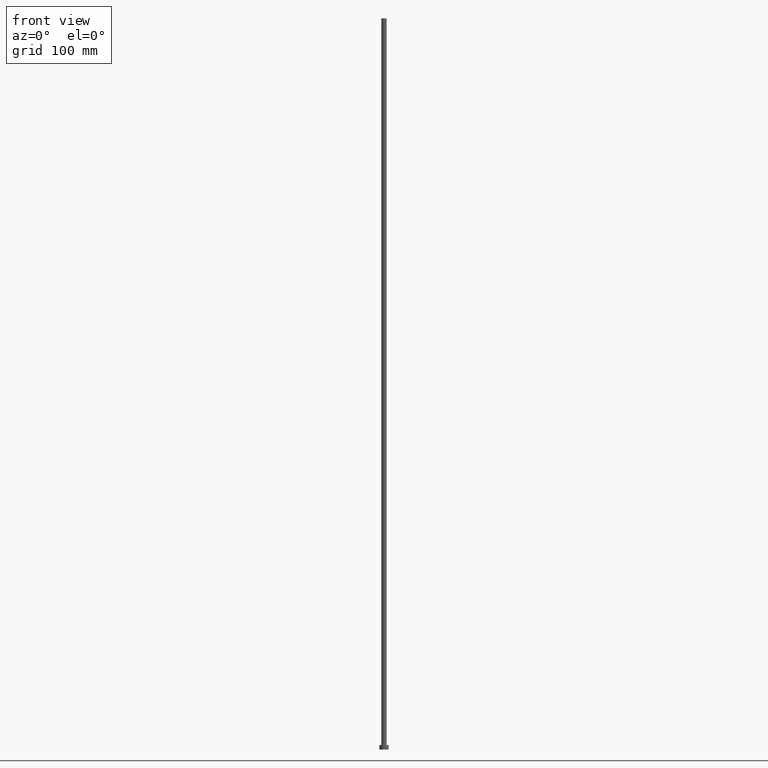
[diagram: clean part render]
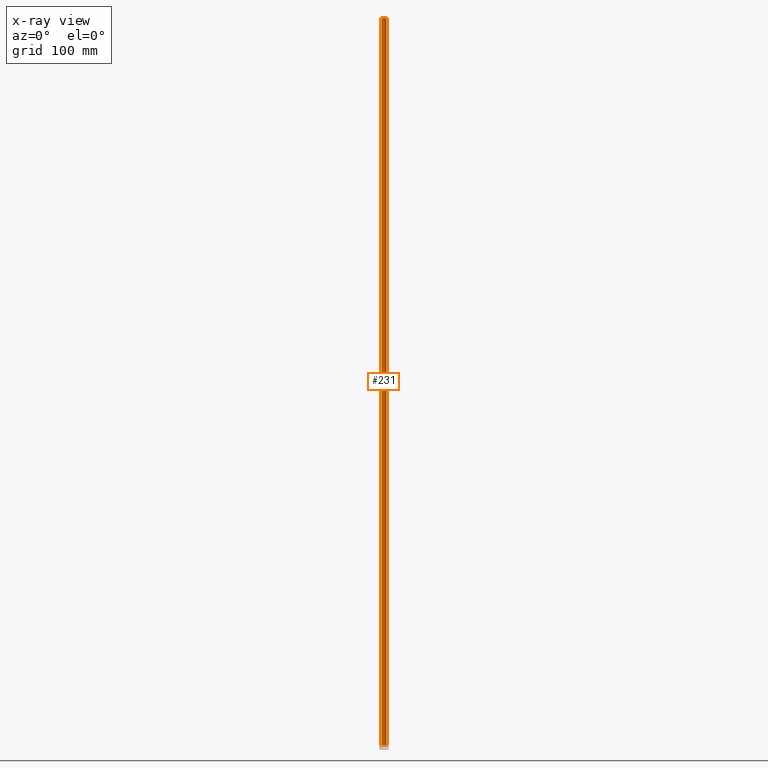
[diagram: x-ray — body ghosted, one internal face saturated and labeled with its STEP entity id]
A machine part, front view, then the same camera in x-ray: the body is ghosted and one INTERNAL B-rep face — a face not visible from any outside direction — is saturated and labeled: STEP entity #231.
In plain terms, the highlighted cylindrical surface (edge-blend (fillet) strip) has radius 2.25 mm, axis along (-0, -0, -1).
Its self-contained STEP definition (entity closure, byte-faithful):
#9 = EDGE_CURVE ( 'NONE', #165, #212, #223, .T. ) ;
#20 = DIRECTION ( 'NONE',  ( 0.000000000000000000, 0.000000000000000000, 1.000000000000000000 ) ) ;
#28 = FACE_OUTER_BOUND ( 'NONE', #199, .T. ) ;
#31 = CARTESIAN_POINT ( 'NONE',  ( 0.000000000000000000, 0.000000000000000000, 630.0000000000000000 ) ) ;
#33 = LINE ( 'NONE', #125, #253 ) ;
#34 = VECTOR ( 'NONE', #90, 1000.000000000000000 ) ;
#38 = CARTESIAN_POINT ( 'NONE',  ( 2.250000000000000000, 2.755455298081544285E-16, 4.000000000000000000 ) ) ;
#43 = ORIENTED_EDGE ( 'NONE', *, *, #9, .T. ) ;
#60 = EDGE_CURVE ( 'NONE', #255, #129, #100, .T. ) ;
#69 = DIRECTION ( 'NONE',  ( 0.000000000000000000, 0.000000000000000000, 1.000000000000000000 ) ) ;
#77 = EDGE_CURVE ( 'NONE', #255, #165, #33, .T. ) ;
#80 = DIRECTION ( 'NONE',  ( -1.000000000000000000, 0.000000000000000000, 0.000000000000000000 ) ) ;
#90 = DIRECTION ( 'NONE',  ( -0.000000000000000000, -0.000000000000000000, -1.000000000000000000 ) ) ;
#93 = CARTESIAN_POINT ( 'NONE',  ( -2.250000000000000000, 0.000000000000000000, 630.0000000000000000 ) ) ;
#100 = CIRCLE ( 'NONE', #135, 2.250000000000000000 ) ;
#111 = AXIS2_PLACEMENT_3D ( 'NONE', #182, #112, #80 ) ;
#112 = DIRECTION ( 'NONE',  ( -0.000000000000000000, -0.000000000000000000, -1.000000000000000000 ) ) ;
#118 = AXIS2_PLACEMENT_3D ( 'NONE', #183, #69, #146 ) ;
#125 = CARTESIAN_POINT ( 'NONE',  ( 2.250000000000000000, 2.755455298081544285E-16, 630.0000000000000000 ) ) ;
#129 = VERTEX_POINT ( 'NONE', #93 ) ;
#134 = ORIENTED_EDGE ( 'NONE', *, *, #162, .F. ) ;
#135 = AXIS2_PLACEMENT_3D ( 'NONE', #31, #20, #188 ) ;
#137 = ORIENTED_EDGE ( 'NONE', *, *, #77, .T. ) ;
#138 = CARTESIAN_POINT ( 'NONE',  ( 2.250000000000000000, 2.755455298081544285E-16, 630.0000000000000000 ) ) ;
#142 = CYLINDRICAL_SURFACE ( 'NONE', #111, 2.250000000000000000 ) ;
#146 = DIRECTION ( 'NONE',  ( 1.000000000000000000, 0.000000000000000000, 0.000000000000000000 ) ) ;
#148 = CARTESIAN_POINT ( 'NONE',  ( -2.250000000000000000, 0.000000000000000000, 4.000000000000000000 ) ) ;
#156 = CARTESIAN_POINT ( 'NONE',  ( -2.250000000000000000, 0.000000000000000000, 630.0000000000000000 ) ) ;
#162 = EDGE_CURVE ( 'NONE', #129, #212, #176, .T. ) ;
#165 = VERTEX_POINT ( 'NONE', #38 ) ;
#176 = LINE ( 'NONE', #156, #34 ) ;
#180 = ORIENTED_EDGE ( 'NONE', *, *, #60, .F. ) ;
#182 = CARTESIAN_POINT ( 'NONE',  ( 0.000000000000000000, 0.000000000000000000, 630.0000000000000000 ) ) ;
#183 = CARTESIAN_POINT ( 'NONE',  ( 0.000000000000000000, 0.000000000000000000, 4.000000000000000000 ) ) ;
#188 = DIRECTION ( 'NONE',  ( 1.000000000000000000, 0.000000000000000000, 0.000000000000000000 ) ) ;
#199 = EDGE_LOOP ( 'NONE', ( #180, #137, #43, #134 ) ) ;
#212 = VERTEX_POINT ( 'NONE', #148 ) ;
#223 = CIRCLE ( 'NONE', #118, 2.250000000000000000 ) ;
#231 = ADVANCED_FACE ( 'NONE', ( #28 ), #142, .T. ) ;
#247 = DIRECTION ( 'NONE',  ( -0.000000000000000000, -0.000000000000000000, -1.000000000000000000 ) ) ;
#253 = VECTOR ( 'NONE', #247, 1000.000000000000000 ) ;
#255 = VERTEX_POINT ( 'NONE', #138 ) ;